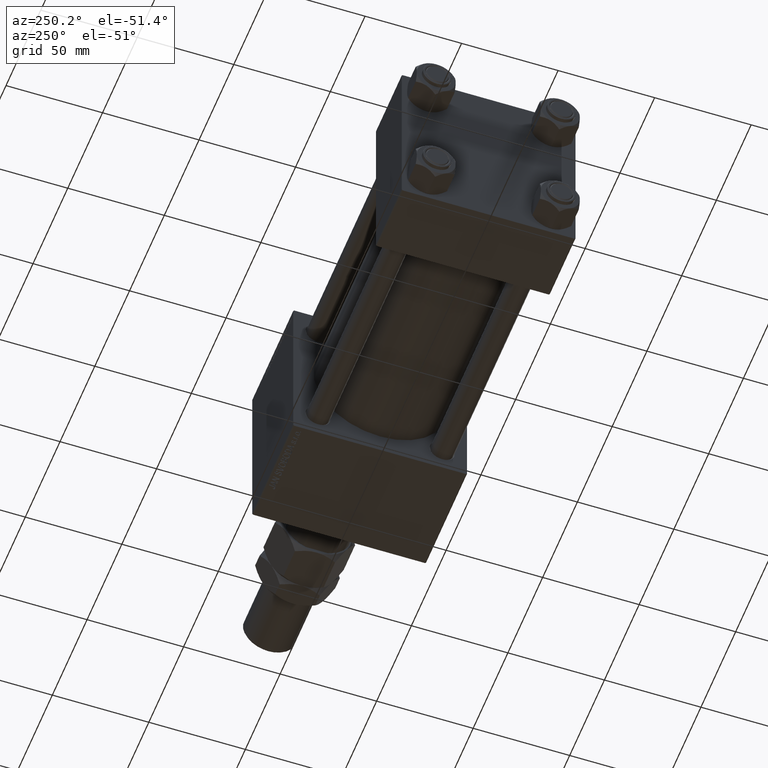
[diagram: clean part render]
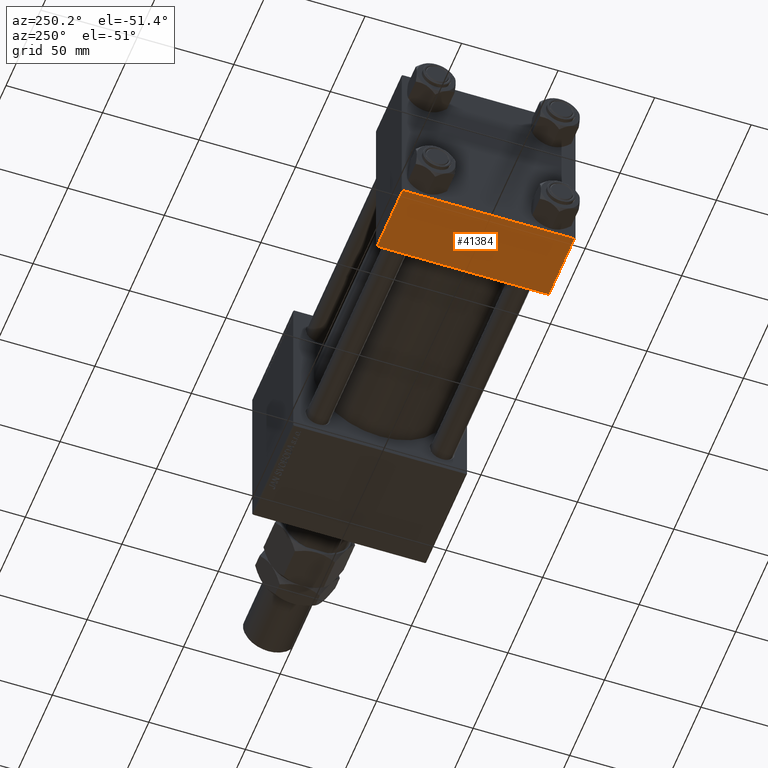
[diagram: same view with one face highlighted and labeled with its STEP entity id]
A machine part, auxiliary view. The second image highlights one B-rep face of the part: STEP entity #41384.
In plain terms, the highlighted planar face has unit normal (0, 0, -1).
Its self-contained STEP definition (entity closure, byte-faithful):
#1953 = CARTESIAN_POINT ( 'NONE',  ( 37.00000000000000000, 44.99999999999998579, -44.99999999999998579 ) ) ;
#2131 = LINE ( 'NONE', #30759, #16273 ) ;
#3285 = DIRECTION ( 'NONE',  ( -1.000000000000000000, 0.000000000000000000, 0.000000000000000000 ) ) ;
#5439 = VECTOR ( 'NONE', #11005, 1000.000000000000000 ) ;
#8197 = EDGE_CURVE ( 'NONE', #43472, #16461, #2131, .T. ) ;
#9800 = VERTEX_POINT ( 'NONE', #18545 ) ;
#10597 = PLANE ( 'NONE',  #43464 ) ;
#11005 = DIRECTION ( 'NONE',  ( 1.000000000000000000, 0.000000000000000000, 0.000000000000000000 ) ) ;
#11105 = FACE_OUTER_BOUND ( 'NONE', #43621, .T. ) ;
#13318 = ORIENTED_EDGE ( 'NONE', *, *, #51701, .T. ) ;
#14030 = DIRECTION ( 'NONE',  ( 0.000000000000000000, -1.000000000000000000, -1.541976423090495633E-16 ) ) ;
#15735 = ORIENTED_EDGE ( 'NONE', *, *, #30319, .T. ) ;
#16273 = VECTOR ( 'NONE', #42280, 1000.000000000000000 ) ;
#16461 = VERTEX_POINT ( 'NONE', #40312 ) ;
#16958 = ORIENTED_EDGE ( 'NONE', *, *, #47525, .T. ) ;
#18545 = CARTESIAN_POINT ( 'NONE',  ( 37.00000000000000000, 44.49999999999998579, -44.99999999999998579 ) ) ;
#22911 = CARTESIAN_POINT ( 'NONE',  ( 37.00000000000000000, 44.99999999999998579, -44.99999999999998579 ) ) ;
#26082 = DIRECTION ( 'NONE',  ( 0.000000000000000000, 1.000000000000000000, 1.541976423090495880E-16 ) ) ;
#26618 = DIRECTION ( 'NONE',  ( 0.000000000000000000, 1.541976423090495880E-16, -1.000000000000000000 ) ) ;
#27243 = ORIENTED_EDGE ( 'NONE', *, *, #8197, .F. ) ;
#28118 = VERTEX_POINT ( 'NONE', #40223 ) ;
#30319 = EDGE_CURVE ( 'NONE', #43472, #9800, #34912, .T. ) ;
#30759 = CARTESIAN_POINT ( 'NONE',  ( 0.000000000000000000, 44.99999999999998579, -44.99999999999998579 ) ) ;
#33748 = VECTOR ( 'NONE', #14030, 1000.000000000000000 ) ;
#34912 = LINE ( 'NONE', #46928, #5439 ) ;
#38478 = LINE ( 'NONE', #43166, #42691 ) ;
#40223 = CARTESIAN_POINT ( 'NONE',  ( 37.00000000000000000, -44.49999999999995737, -45.00000000000000000 ) ) ;
#40312 = CARTESIAN_POINT ( 'NONE',  ( 0.000000000000000000, -44.49999999999995737, -45.00000000000000000 ) ) ;
#41384 = ADVANCED_FACE ( 'NONE', ( #11105 ), #10597, .T. ) ;
#42280 = DIRECTION ( 'NONE',  ( 0.000000000000000000, -1.000000000000000000, -1.541976423090495633E-16 ) ) ;
#42691 = VECTOR ( 'NONE', #3285, 1000.000000000000000 ) ;
#43166 = CARTESIAN_POINT ( 'NONE',  ( 0.000000000000000000, -44.49999999999998579, -45.00000000000000000 ) ) ;
#43464 = AXIS2_PLACEMENT_3D ( 'NONE', #22911, #26618, #26082 ) ;
#43472 = VERTEX_POINT ( 'NONE', #49359 ) ;
#43621 = EDGE_LOOP ( 'NONE', ( #27243, #15735, #13318, #16958 ) ) ;
#46928 = CARTESIAN_POINT ( 'NONE',  ( 37.00000000000000000, 44.49999999999998579, -44.99999999999998579 ) ) ;
#47525 = EDGE_CURVE ( 'NONE', #28118, #16461, #38478, .T. ) ;
#49175 = LINE ( 'NONE', #1953, #33748 ) ;
#49359 = CARTESIAN_POINT ( 'NONE',  ( 0.000000000000000000, 44.49999999999998579, -44.99999999999998579 ) ) ;
#51701 = EDGE_CURVE ( 'NONE', #9800, #28118, #49175, .T. ) ;